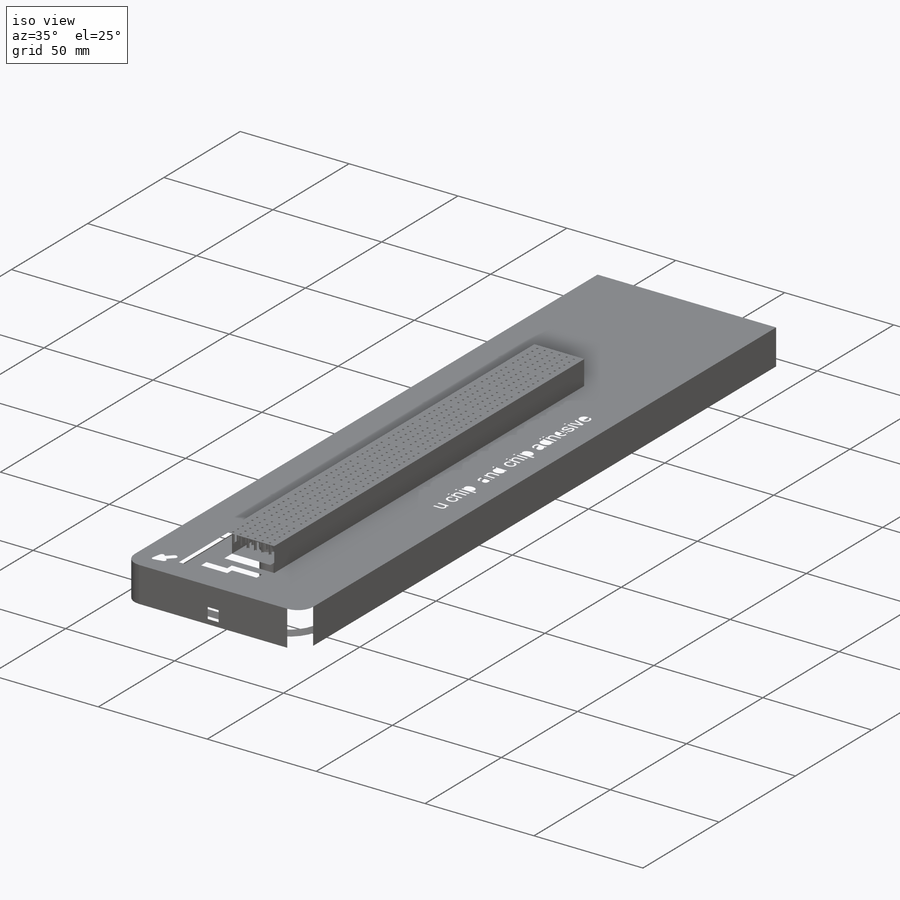
[diagram: iso view]
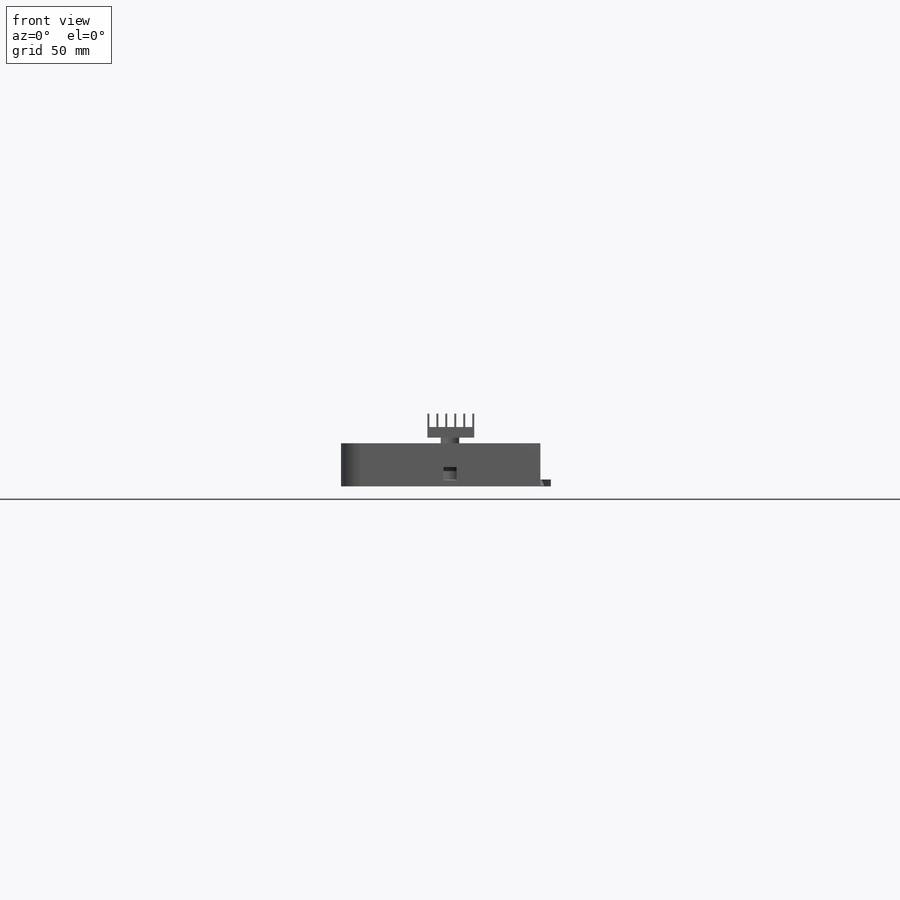
[diagram: front view]
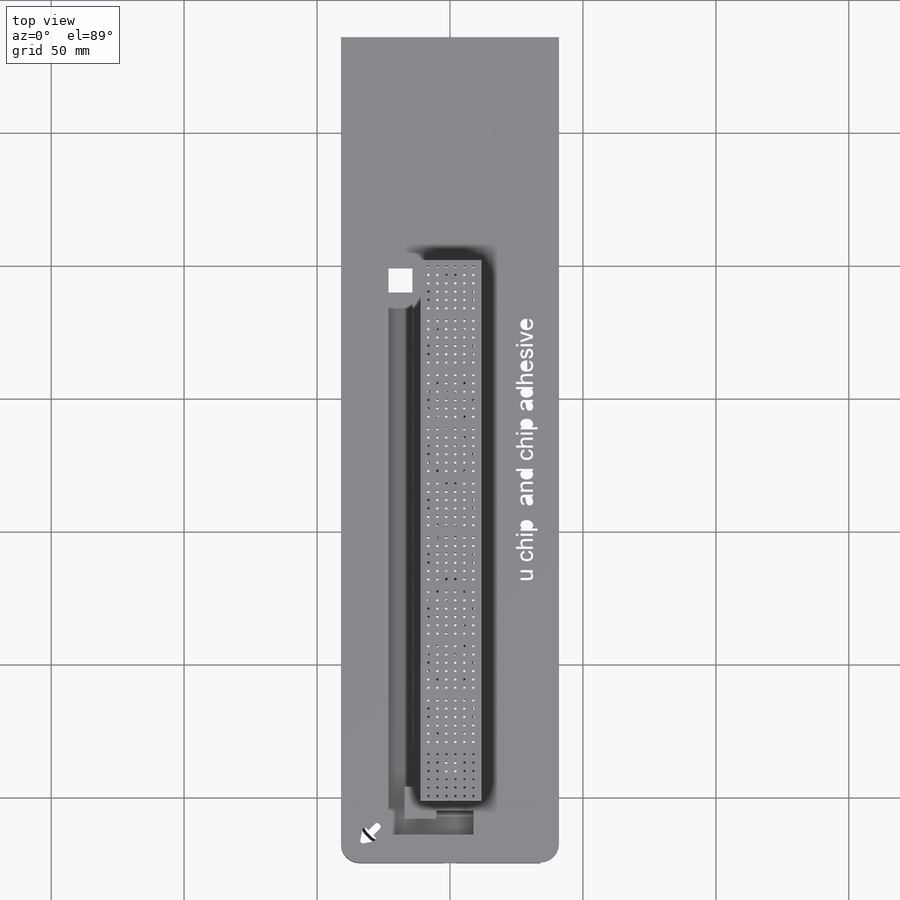
[diagram: top view]
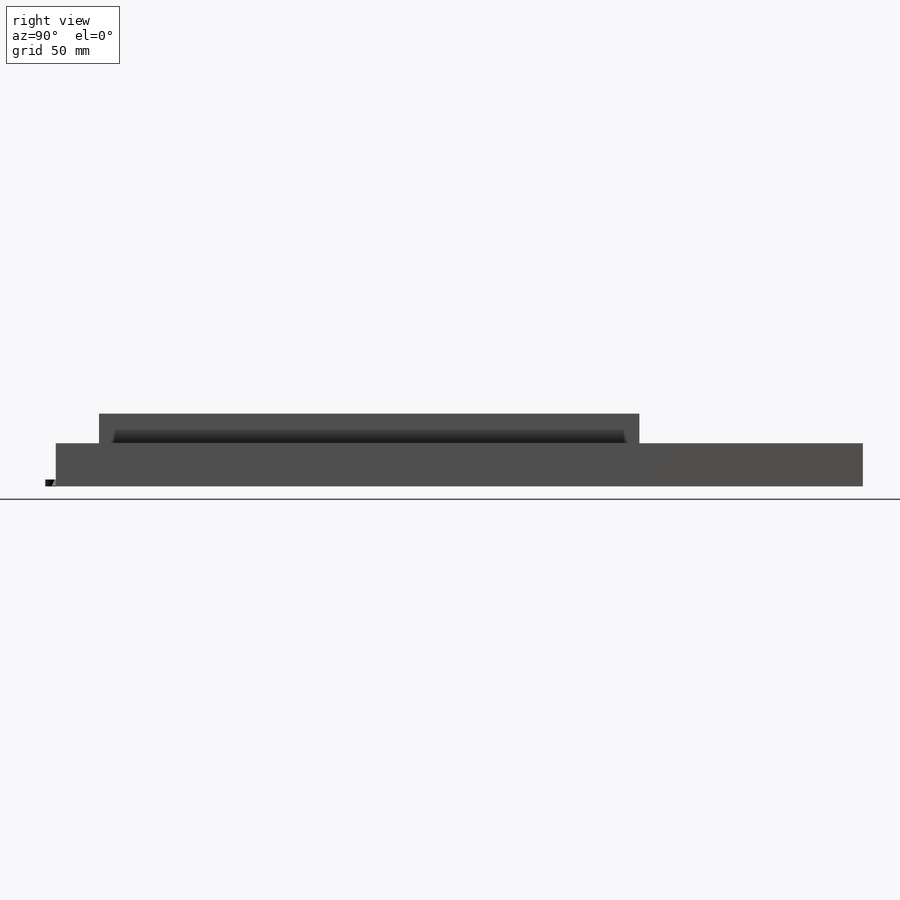
[diagram: right view]
SOLIDWORKS PART (.sldprt)
format: sldprt  version: not decoded by parser v0  size: 4,987,904 bytes
history: native  units: mm
features: sketch x27, cut_extrude x14, extrude x8, fillet x6, pattern_linear x5, sweep x2, material x1, mirror x1 (+11 scaffold rows collapsed)
feature tree (75):
  scaffold x11  (default folders/planes/origin — collapsed)
  material  "6061 Alloy"
  sketch  "Sketch1"  dims[c1.D1=3.0mm c1.D2=3.0mm c1.D3=15.0mm c2.D1=310.545mm c2.D2=82.0mm c2.D3=~124.70025mm]
  extrude  "Extrude1"  Depth=27.1442mm
  fillet  "Fillet1"  Radius=7mm
  sketch  "Sketch3"  dims[D1=22.88mm D2=~101.784625mm D3=~102.115375mm D4=11.14mm]
  cut_extrude  "Extrude2"  Depth=16mm
  sketch  "Sketch4"  dims[D1=~21.01652mm D2=~14.03098mm D3=~13.532286mm D4=~9.594443mm]
  sketch  "Sketch5"  dims[c1.D1=2.159mm c1.D2=2.4384mm c1.D3=~3.614439mm c2.D3=66.0deg c2.D1=2.3876mm]
  sweep  "Cut-Sweep1"
  fillet  "Fillet2"  Radius=0.254mm
  fillet  "Fillet3"  Radius=0.254mm
  fillet  "Fillet4"  Radius=0.254mm
  sketch  "Sketch6"  dims[D1=10.7696mm D3=7.0mm D2=~88.36525mm]
  sketch  "Sketch7"  dims[c1.D1=2.3876mm c1.D2=2.4384mm c1.D3=2.159mm c2.D3=66.0deg]
  sweep  "Cut-Sweep2"
  sketch  "Sketch8"  dims[D1=7.0mm]
  cut_extrude  "Extrude3"  Depth=5mm
  pattern_linear  "o rings"  Count1=14 Count2=1 Spacing1=19.67mm Spacing2=10mm
  pattern_linear  "holes to chips"  Count1=10 Count2=1 Spacing1=19.67mm Spacing2=10mm
  sketch  "Sketch9"  dims[c1.D1=1.5mm c1.D2=1.5mm c1.D3=1.5mm c1.D4=1.5mm c1.D5=1.5mm c1.D6=1.5mm c1.D7=1.5mm c1.D8=1.5mm c2.D1=0.75mm c2.D2=1.8993mm]
  cut_extrude  "6 hole line"  [1 undecoded]
  pattern_linear  "LPattern2"  Count1=6 Count2=1 Spacing1=3.13469mm Spacing2=10mm
  sketch  "Sketch10"
  cut_extrude  "Extrude5"  Depth=4mm
  pattern_linear  "LPattern3"  Count1=10 Count2=1 Spacing1=20.39mm Spacing2=10mm
  sketch  "Sketch11"  dims[D2=~2.345122mm D3=~1.809001mm D4=~12.293034mm D1=5.0mm]
  cut_extrude  "Extrude6"  Depth=2mm
  sketch  "Sketch12"  dims[D1=7.0mm D2=8.0mm]
  extrude  "Extrude7"  [1 undecoded]
  pattern_linear  "LPattern4"  Count1=14 Count2=1 Spacing1=20.5mm Spacing2=10mm
  mirror  "Mirror1"
  sketch  "Sketch13"  dims[D1=3.0mm D2=3.0mm D3=12.0mm D4=9.0mm]
  cut_extrude  "Extrude8"  Depth=2mm
  sketch  "Sketch14"  dims[D1=3.0mm]
  cut_extrude  "Extrude9"  [1 undecoded]
  sketch  "Sketch15"  dims[D1=1.5mm]
  extrude  "old proj"  [1 undecoded]
  sketch  "Sketch16"  dims[D1=9.0mm]
  cut_extrude  "Extrude11"  Depth=5mm
  sketch  "Sketch17"  dims[D1=3.0mm]
  cut_extrude  "Extrude12"  Depth=37mm
  sketch  "Sketch18"  dims[D1=7.0mm]
  cut_extrude  "Extrude13"  [1 undecoded]
  sketch  "Sketch20"
  sketch  "Sketch19"
  cut_extrude  "Extrude14"  Depth=17mm
  sketch  "Sketch21"  dims[D1=5.0mm D2=2.0mm D3=15.0mm D4=15.0mm]
  extrude  "Extrude15"  Depth=3mm
  sketch  "Sketch22"
  extrude  "Extrude16"  Depth=3mm
  fillet  "Fillet5"  Radius=7mm
  sketch  "Sketch23"  dims[c1.D1=~10.610695mm c2.D1=45.0deg c2.D2=2.6mm c2.D3=4.5mm c2.D4=6.0mm c2.D5=4.0mm]
  cut_extrude  "Extrude17"  Depth=1mm
  fillet  "Fillet6"  Radius=1mm
  sketch  "Sketch24"
  cut_extrude  "Extrude18"  Depth=1mm
  sketch  "Sketch25"  dims[D1=0.0mm D2=0.0mm]
  extrude  "Boss-Extrude1"  Depth=0.18mm
  sketch  "Sketch26"  dims[D1=0.0mm D2=2.0mm]
  extrude  "Boss-Extrude2"  [1 undecoded]
  sketch  "Sketch27"  dims[D1=12.0mm D2=3.0mm D3=3.0mm]
  extrude  "Boss-Extrude3"  [1 undecoded]
  sketch  "Sketch28"  dims[D1=0.7mm]
  cut_extrude  "Cut-Extrude1"  [1 undecoded]
decode coverage: 47 of 63 modeling features carry decoded parameters
note: ~ marks probable driven/reference dimensions
note: 8 parameter values undecoded
summary: no parameter record found for 8 features
note: suppression state not decoded; provenance and decode notes live in map.json
